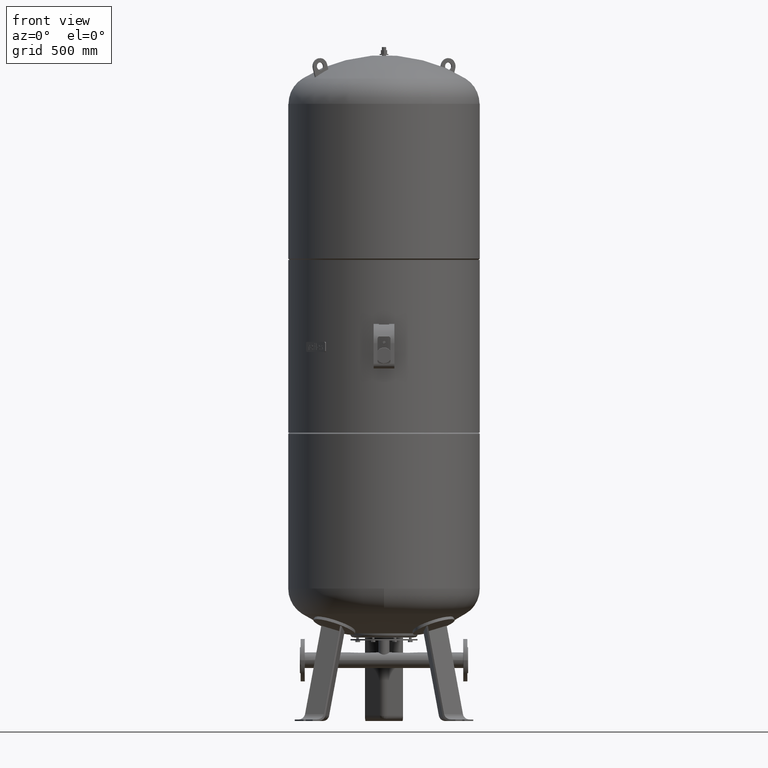
[diagram: clean part render]
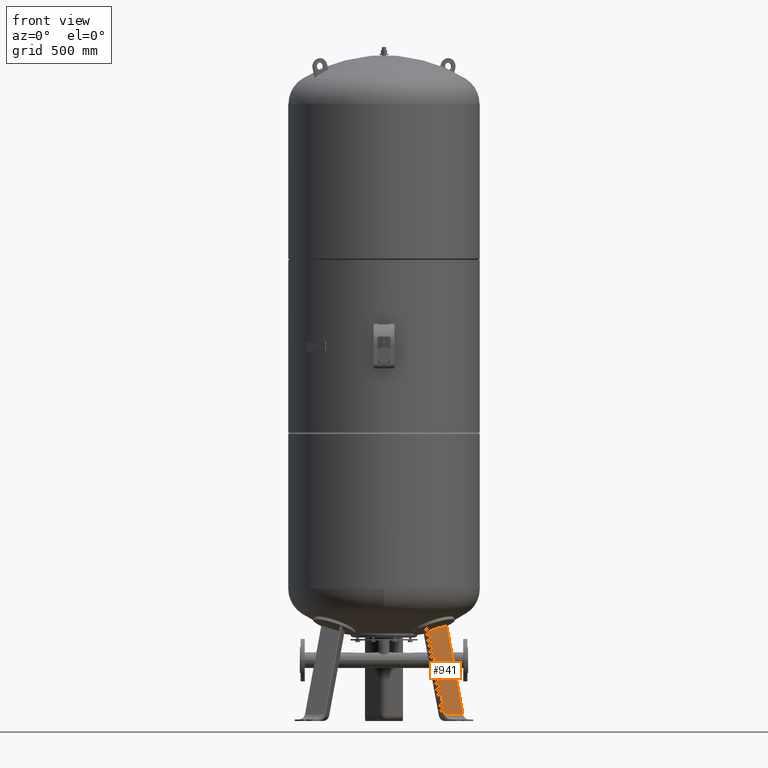
[diagram: same view with one face highlighted and labeled with its STEP entity id]
A machine part, front view. The second image highlights one B-rep face of the part: STEP entity #941.
In plain terms, the highlighted planar face has unit normal (0.3243, -0.9325, 0.1588).
Its self-contained STEP definition (entity closure, byte-faithful):
#242=CARTESIAN_POINT('',(174.964894062055810,-82.383260228509442,348.869175182353330));
#243=VERTEX_POINT('',#242);
#261=CARTESIAN_POINT('',(241.377997885815320,-55.253728775100939,372.562952014676110));
#262=VERTEX_POINT('',#261);
#263=CARTESIAN_POINT('',(241.377997885815320,-55.253728775100939,372.562952014676110));
#264=CARTESIAN_POINT('',(228.112303617602180,-60.793190615536673,367.122797962066330));
#265=CARTESIAN_POINT('',(214.786380419185210,-66.287684017357122,362.069703598062520));
#266=CARTESIAN_POINT('',(194.645794721043930,-74.480237449833609,355.088683497571820));
#267=CARTESIAN_POINT('',(187.828305682259040,-77.233956594289609,352.839681936075920));
#268=CARTESIAN_POINT('',(178.999738907126360,-80.772078679025313,350.091155577606000));
#269=CARTESIAN_POINT('',(176.981983461321650,-81.578804624385526,349.474179354457020));
#270=CARTESIAN_POINT('',(174.964894062055810,-82.383260228509442,348.869175182353330));
#271=B_SPLINE_CURVE_WITH_KNOTS('',3,(#263,#264,#265,#266,#267,#268,#269,#270),.UNSPECIFIED.,.F.,.U.,(4,2,2,4),(536.144034177567730,540.433260676197730,542.629325785795340,543.280185670864850),.UNSPECIFIED.);
#272=EDGE_CURVE('',#262,#243,#271,.T.);
#594=CARTESIAN_POINT('',(234.208860074676040,-116.587779953756840,27.029948423057284));
#595=VERTEX_POINT('',#594);
#604=CARTESIAN_POINT('',(304.983499698466010,-91.976382368576168,27.029948423057281));
#605=VERTEX_POINT('',#604);
#613=CARTESIAN_POINT('',(304.983499698466010,-91.976382368576168,27.029948423057281));
#614=DIRECTION('',(-0.944521094592692,-0.328450760190052,4.741265E-017));
#615=VECTOR('',#614,74.931772333057609);
#616=LINE('',#613,#615);
#617=EDGE_CURVE('',#605,#595,#616,.T.);
#861=CARTESIAN_POINT('',(304.983499698466010,-91.976382368576168,27.029948423057281));
#862=DIRECTION('',(-0.180056805991956,0.103955845408880,0.978147600733805));
#863=VECTOR('',#862,353.252416437355920);
#864=LINE('',#861,#863);
#865=EDGE_CURVE('',#605,#262,#864,.T.);
#925=CARTESIAN_POINT('',(322.427826939179400,-102.047869396833960,-67.735293817669458));
#926=DIRECTION('',(0.324282864533176,-0.932535537409927,0.158802063077709));
#927=DIRECTION('',(-0.180056805991956,0.103955845408880,0.978147600733806));
#928=AXIS2_PLACEMENT_3D('',#925,#926,#927);
#929=PLANE('',#928);
#930=ORIENTED_EDGE('',*,*,#865,.T.);
#931=ORIENTED_EDGE('',*,*,#272,.T.);
#932=CARTESIAN_POINT('',(234.208860074676040,-116.587779953756840,27.029948423057284));
#933=DIRECTION('',(-0.180056805991956,0.103955845408880,0.978147600733806));
#934=VECTOR('',#933,329.029306535999750);
#935=LINE('',#932,#934);
#936=EDGE_CURVE('',#595,#243,#935,.T.);
#937=ORIENTED_EDGE('',*,*,#936,.F.);
#938=ORIENTED_EDGE('',*,*,#617,.F.);
#939=EDGE_LOOP('',(#930,#931,#937,#938));
#940=FACE_OUTER_BOUND('',#939,.T.);
#941=ADVANCED_FACE('',(#940),#929,.T.);